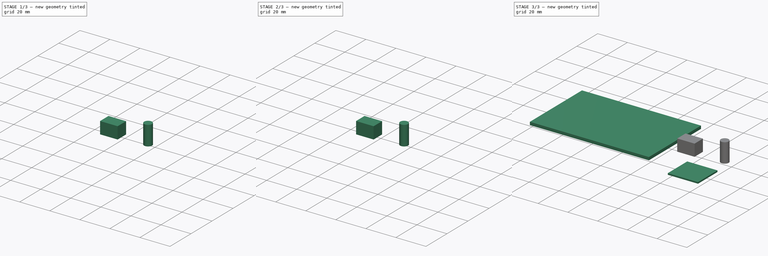
[diagram: build sequence overview — one tinted view per stage of 3, left to right]
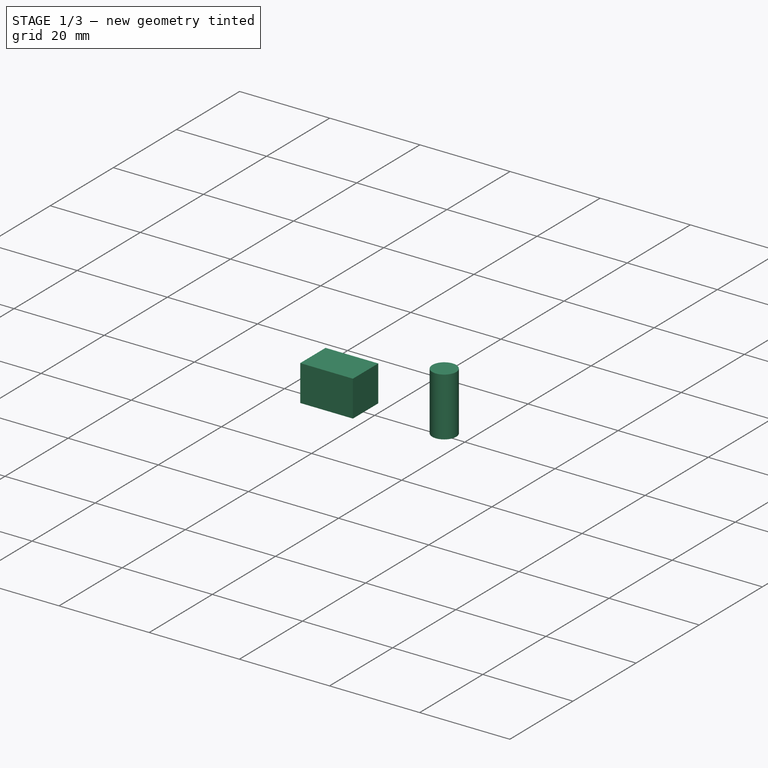
[diagram: stage 1 of 3 — iso view after this stage's code; geometry added in this stage tinted green]
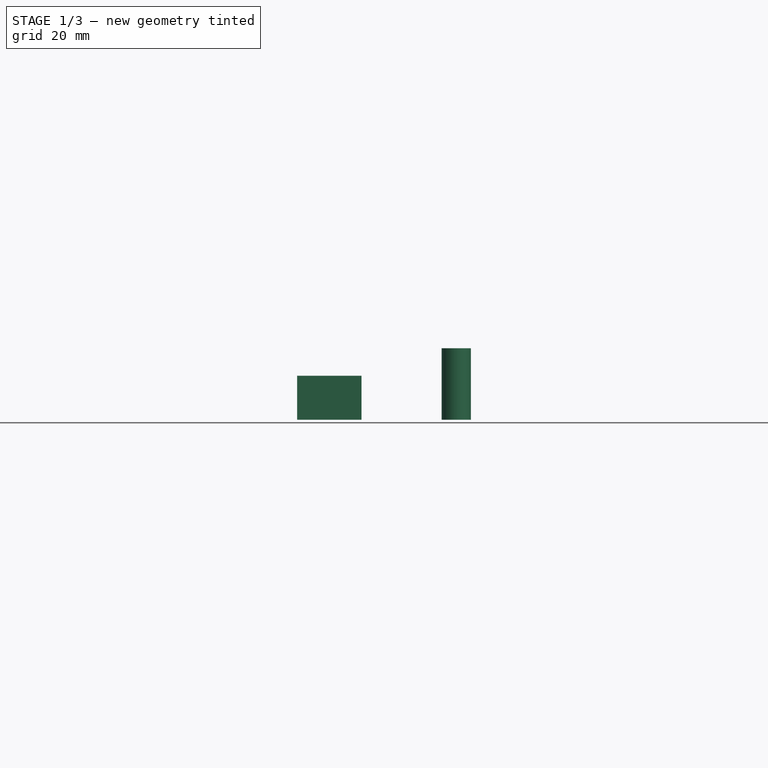
[diagram: stage 1 of 3 — front view after this stage's code; geometry added in this stage tinted green]
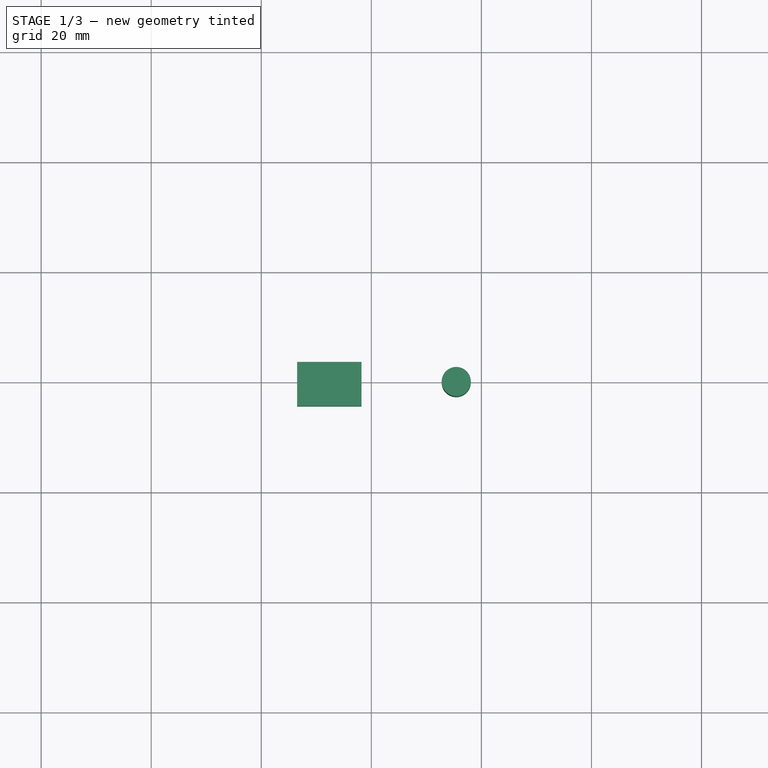
[diagram: stage 1 of 3 — top view after this stage's code; geometry added in this stage tinted green]
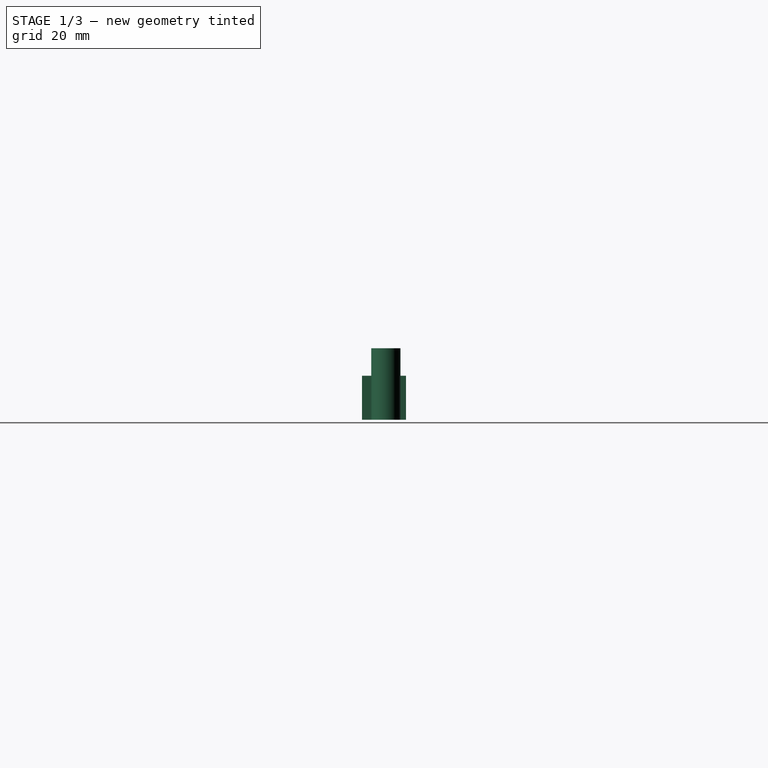
[diagram: stage 1 of 3 — right view after this stage's code; geometry added in this stage tinted green]
FCSTD DOCUMENT  (FreeCAD 0.19R24291 (Git))
Label: elegoo
License: All rights reserved
LicenseURL: http://en.wikipedia.org/wiki/All_rights_reserved
objects: Sketcher::SketchObject×4, PartDesign::Pad×4, PartDesign::Body×4, PartDesign::Hole×1, App::LinkGroup×1
note: 18 computed .brp shape members not serialized (recipe doc carries the construction recipe); baked Part::Feature solids carry a one-line shape summary decoded from their .brp

FEATURE [PartDesign::Body] Body001  label="chip"
  Group = -> [Sketch001,Pad001]
  Origin = -> Origin001
  Placement = pos=(-88,26,2) rot=(0,0,1;0rad)
  Tip = -> Pad001
FEATURE [Sketcher::SketchObject] Sketch002
  FullyConstrained = false
  MapMode = 5
  Support = -> [XY_Plane002]
  sketch-geometry (4):
    g0: LineSegment StartX=46.5283 StartY=3.66319 StartZ=0 EndX=58.2184 EndY=3.66319 EndZ=0
    g1: LineSegment StartX=58.2184 StartY=3.66319 StartZ=0 EndX=58.2184 EndY=-4.34671 EndZ=0
    g2: LineSegment StartX=58.2184 StartY=-4.34671 StartZ=0 EndX=46.5283 EndY=-4.34671 EndZ=0
    g3: LineSegment StartX=46.5283 StartY=-4.34671 StartZ=0 EndX=46.5283 EndY=3.66319 EndZ=0
  constraints (8):
    c: Coincident(g0,g1)
    c: Coincident(g1,g2)
    c: Coincident(g2,g3)
    c: Coincident(g3,g0)
    c: Horizontal(g0)
    c: Horizontal(g2)
    c: Vertical(g1)
    c: Vertical(g3)
FEATURE [PartDesign::Pad] Pad002
  Direction = (1,1,1)
  Length = 8
  Length2 = 100
  Profile = -> Sketch002
  Type = 0
FEATURE [PartDesign::Body] Body002  label="conect"
  Group = -> [Sketch002,Pad002,Hole]
  Origin = -> Origin002
  Placement = pos=(-11,17,2) rot=(0,0,1;0rad)
  Tip = -> Hole
FEATURE [Sketcher::SketchObject] Sketch003
  FullyConstrained = false
  MapMode = 5
  Support = -> [XY_Plane003]
  sketch-geometry (1):
    g0: Circle CenterX=75.4358 CenterY=0 CenterZ=0 NormalX=0 NormalY=0 NormalZ=1 AngleXU=0 Radius=2.64986
  constraints (1):
    c: PointOnObject(g0,g-1)
FEATURE [PartDesign::Pad] Pad003
  Direction = (1,1,1)
  Length = 13
  Length2 = 100
  Profile = -> Sketch003
  Type = 0
FEATURE [PartDesign::Body] Body003  label="bateria"
  Group = -> [Sketch003,Pad003]
  Origin = -> Origin003
  Placement = pos=(44,70,4) rot=(-0.57735,0.57735,0.57735;4.18879rad)
  Tip = -> Pad003
FEATURE [App::LinkGroup] LinkGroup  label="ardu"
  ElementList = -> [Body003,Body002,Body001,Body]
  LinkMode = 0
  Placement = pos=(20,-2.6226e-06,-4.76837e-07) rot=(0,0,1;0rad)
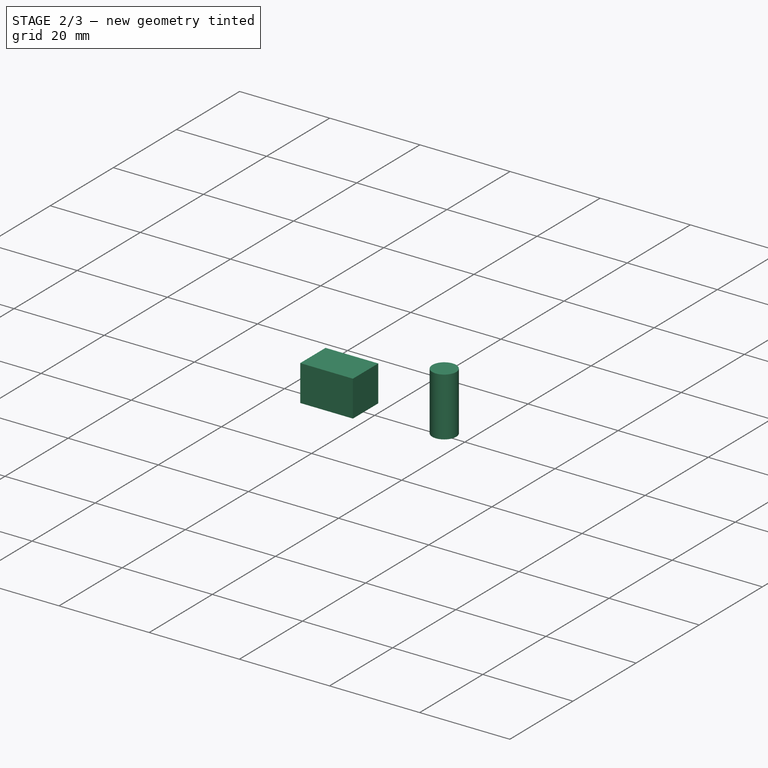
[diagram: stage 2 of 3 — iso view after this stage's code; geometry added in this stage tinted green]
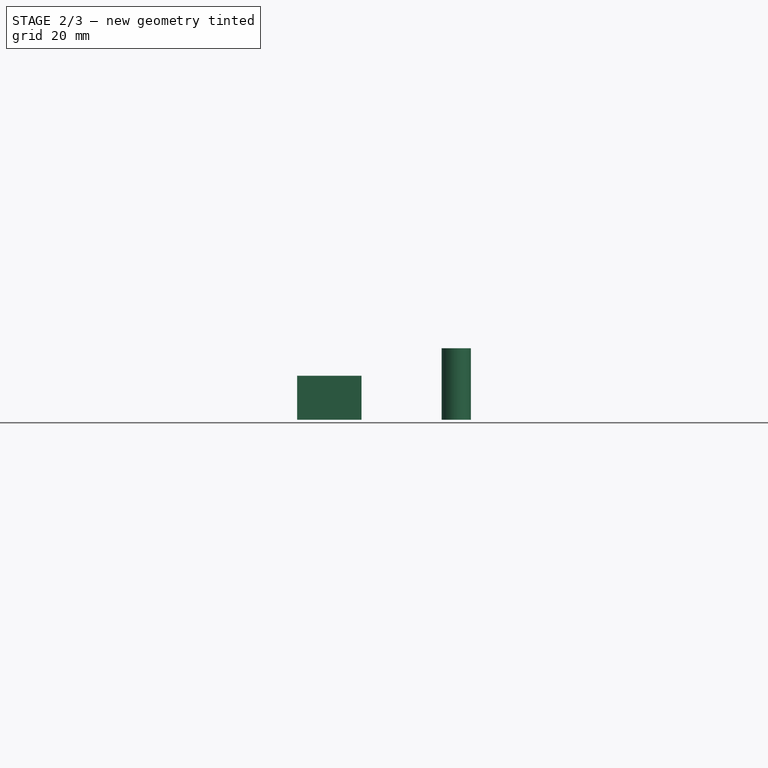
[diagram: stage 2 of 3 — front view after this stage's code; geometry added in this stage tinted green]
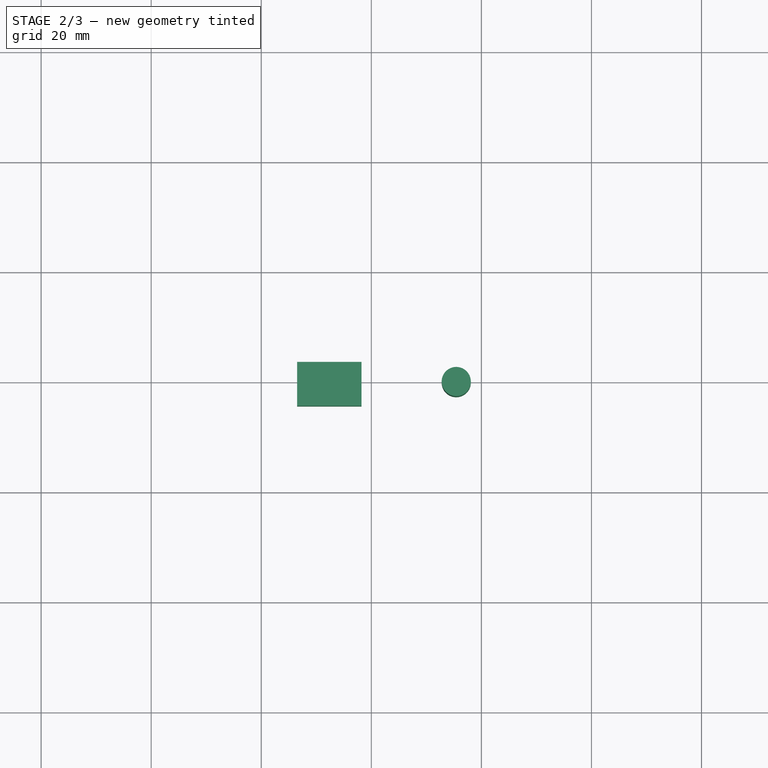
[diagram: stage 2 of 3 — top view after this stage's code; geometry added in this stage tinted green]
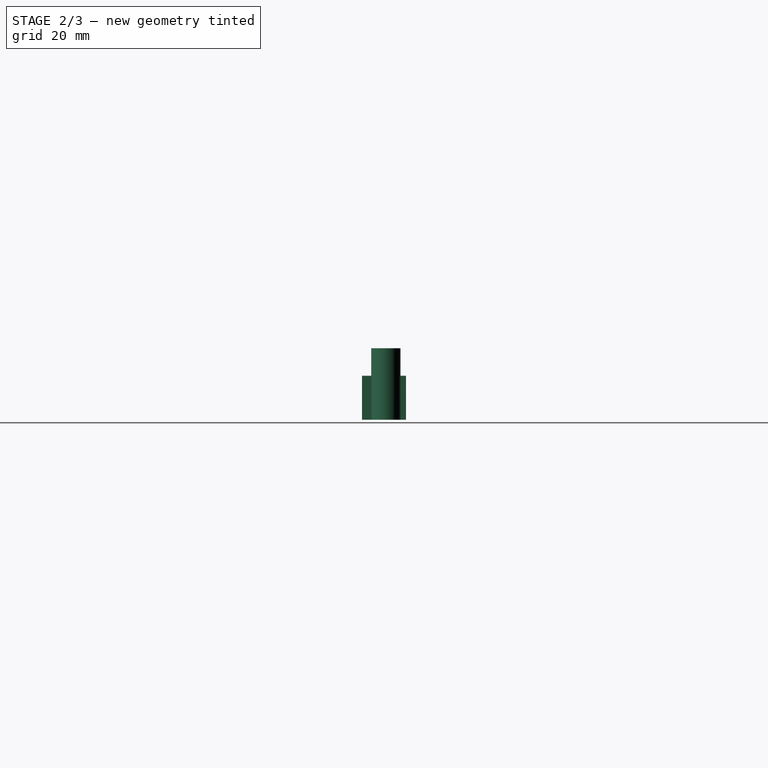
[diagram: stage 2 of 3 — right view after this stage's code; geometry added in this stage tinted green]
FEATURE [PartDesign::Hole] Hole
  BaseFeature = -> Pad002
  Depth = 25
  DepthType = 0
  Diameter = 6
  DrillForDepth = false
  DrillPoint = 1
  DrillPointAngle = 118
  HoleCutCountersinkAngle = 90
  HoleCutCustomValues = false
  HoleCutDepth = 0
  HoleCutDiameter = 6.1
  HoleCutType = 0
  ModelActualThread = false
  Profile = -> Pad002
  Tapered = false
  TaperedAngle = 90
  ThreadAngle = 0
  ThreadClass = 0
  ThreadCutOffInner = 0
  ThreadCutOffOuter = 0
  ThreadDirection = 0
  ThreadFit = 0
  ThreadPitch = 0
  ThreadSize = 0
  ThreadType = 0
  Threaded = false
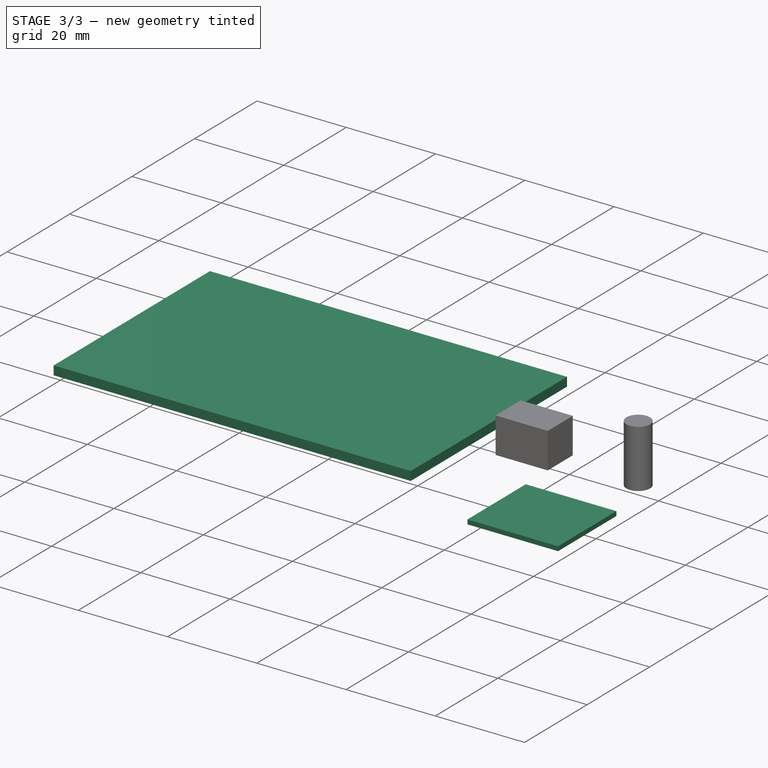
[diagram: stage 3 of 3 — iso view after this stage's code; geometry added in this stage tinted green]
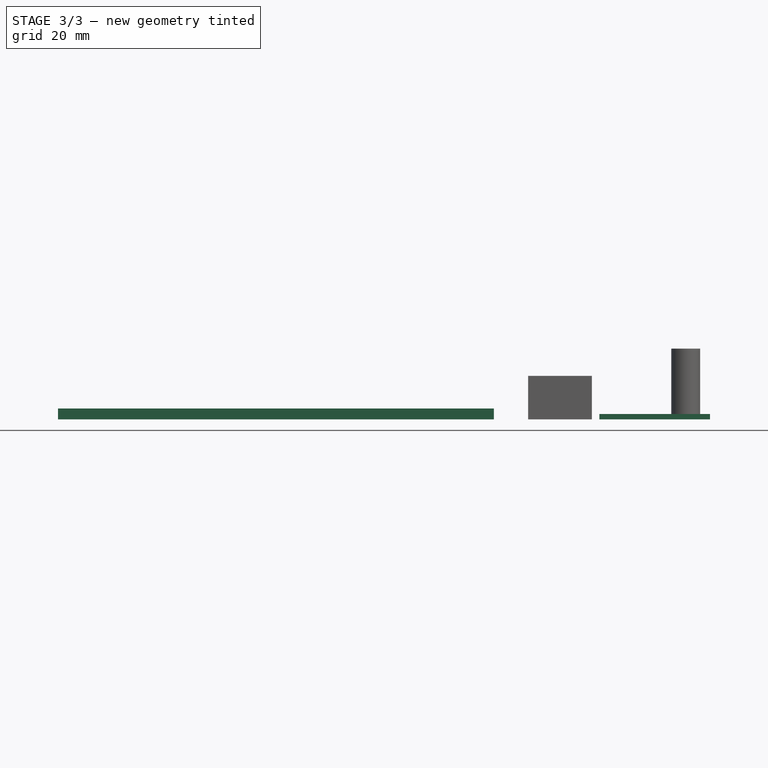
[diagram: stage 3 of 3 — front view after this stage's code; geometry added in this stage tinted green]
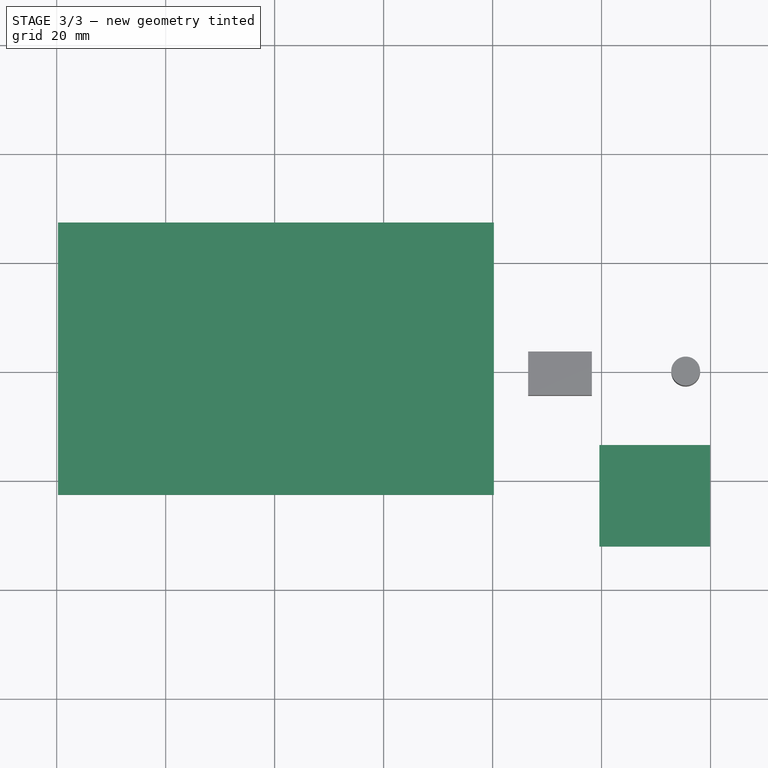
[diagram: stage 3 of 3 — top view after this stage's code; geometry added in this stage tinted green]
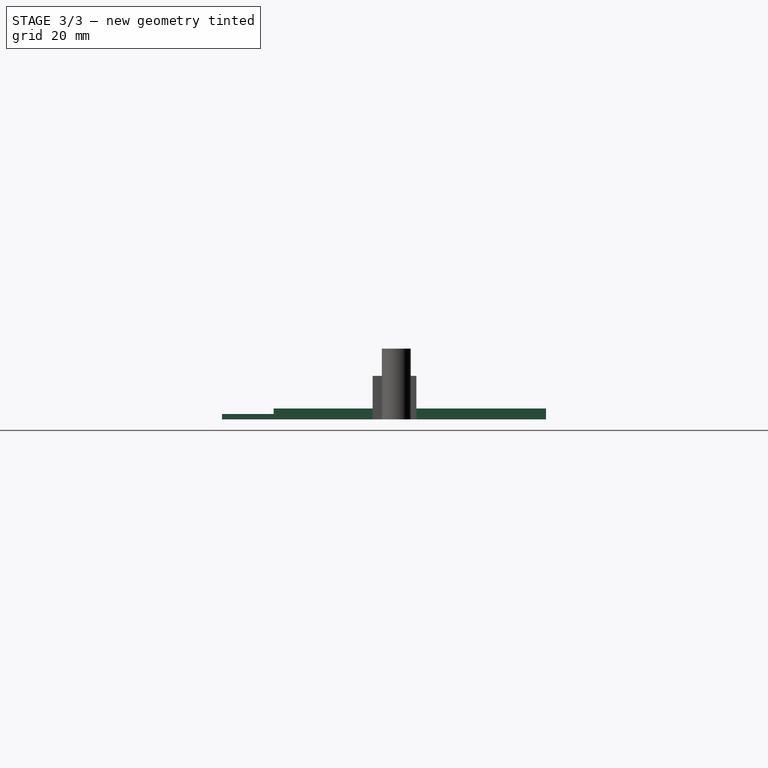
[diagram: stage 3 of 3 — right view after this stage's code; geometry added in this stage tinted green]
FEATURE [Sketcher::SketchObject] Sketch
  FullyConstrained = false
  MapMode = 5
  Support = -> [XY_Plane]
  sketch-geometry (4):
    g0: LineSegment StartX=-39.7547 StartY=27.4663 StartZ=0 EndX=40.2453 EndY=27.4663 EndZ=0
    g1: LineSegment StartX=40.2453 StartY=27.4663 StartZ=0 EndX=40.2453 EndY=-22.5337 EndZ=0
    g2: LineSegment StartX=40.2453 StartY=-22.5337 StartZ=0 EndX=-39.7547 EndY=-22.5337 EndZ=0
    g3: LineSegment StartX=-39.7547 StartY=-22.5337 StartZ=0 EndX=-39.7547 EndY=27.4663 EndZ=0
  constraints (10):
    c: Coincident(g0,g1)
    c: Coincident(g1,g2)
    c: Coincident(g2,g3)
    c: Coincident(g3,g0)
    c: Horizontal(g0)
    c: Horizontal(g2)
    c: Vertical(g1)
    c: Vertical(g3)
    c: DistanceX(g0,g0) = 80
    c: DistanceY(g1,g1) = 50
FEATURE [PartDesign::Pad] Pad
  Direction = (1,1,1)
  Length = 2
  Length2 = 100
  Profile = -> Sketch
  Type = 0
FEATURE [PartDesign::Body] Body  label="base"
  Group = -> [Sketch,Pad]
  Origin = -> Origin
  Tip = -> Pad
FEATURE [Sketcher::SketchObject] Sketch001
  FullyConstrained = false
  MapMode = 5
  Support = -> [XY_Plane001]
  sketch-geometry (4):
    g0: LineSegment StartX=59.5865 StartY=-13.365 StartZ=0 EndX=79.8925 EndY=-13.365 EndZ=0
    g1: LineSegment StartX=79.8925 StartY=-13.365 StartZ=0 EndX=79.8925 EndY=-32.002 EndZ=0
    g2: LineSegment StartX=79.8925 StartY=-32.002 StartZ=0 EndX=59.5865 EndY=-32.002 EndZ=0
    g3: LineSegment StartX=59.5865 StartY=-32.002 StartZ=0 EndX=59.5865 EndY=-13.365 EndZ=0
  constraints (8):
    c: Coincident(g0,g1)
    c: Coincident(g1,g2)
    c: Coincident(g2,g3)
    c: Coincident(g3,g0)
    c: Horizontal(g0)
    c: Horizontal(g2)
    c: Vertical(g1)
    c: Vertical(g3)
FEATURE [PartDesign::Pad] Pad001
  Direction = (1,1,1)
  Length = 1
  Length2 = 100
  Profile = -> Sketch001
  Type = 0
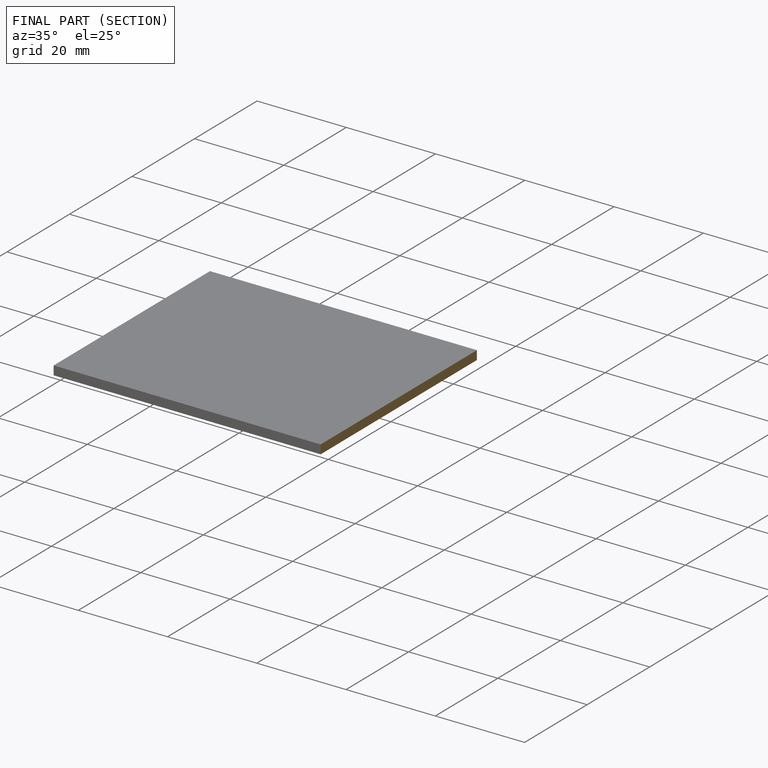
[diagram: finished part — half-section view (interior)]
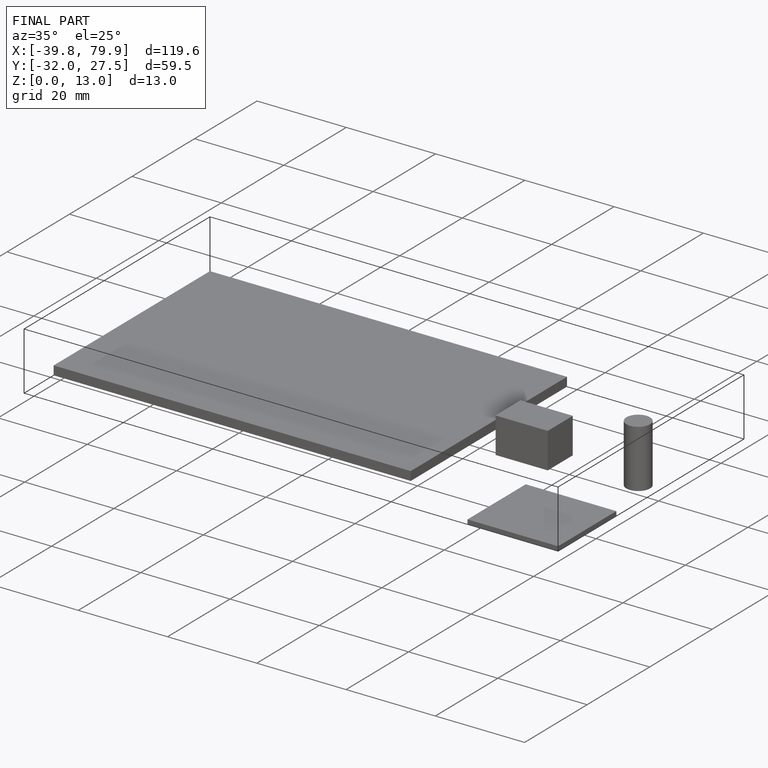
[diagram: finished part — iso view with bounding-box wireframe]
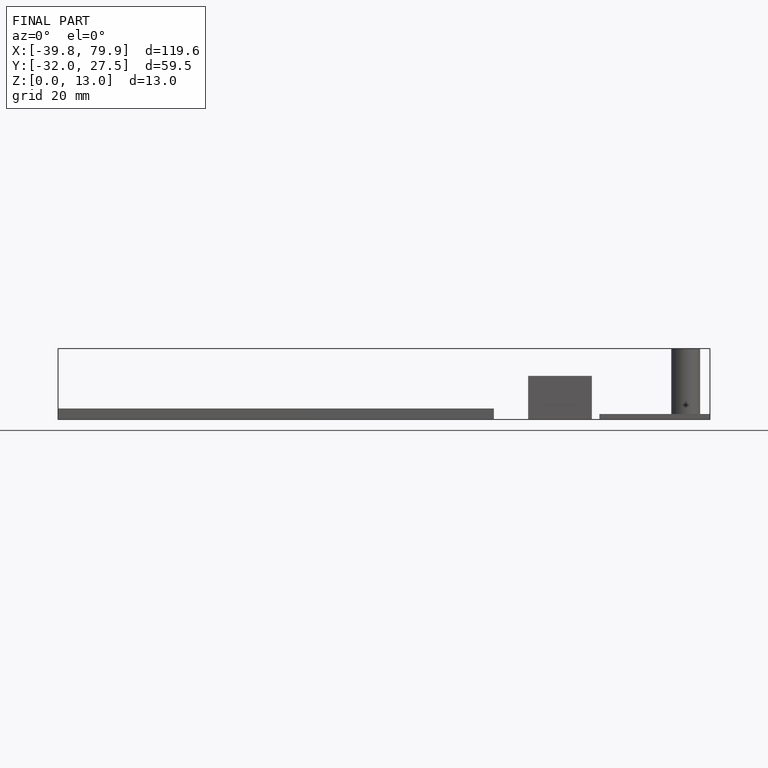
[diagram: finished part — front view with bounding-box wireframe]
